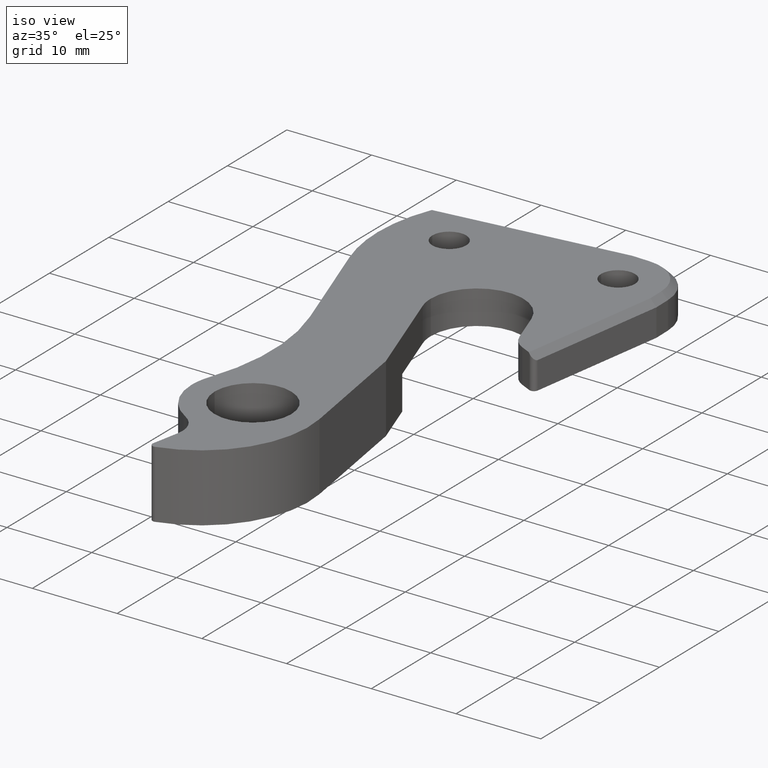
[diagram: clean part render]
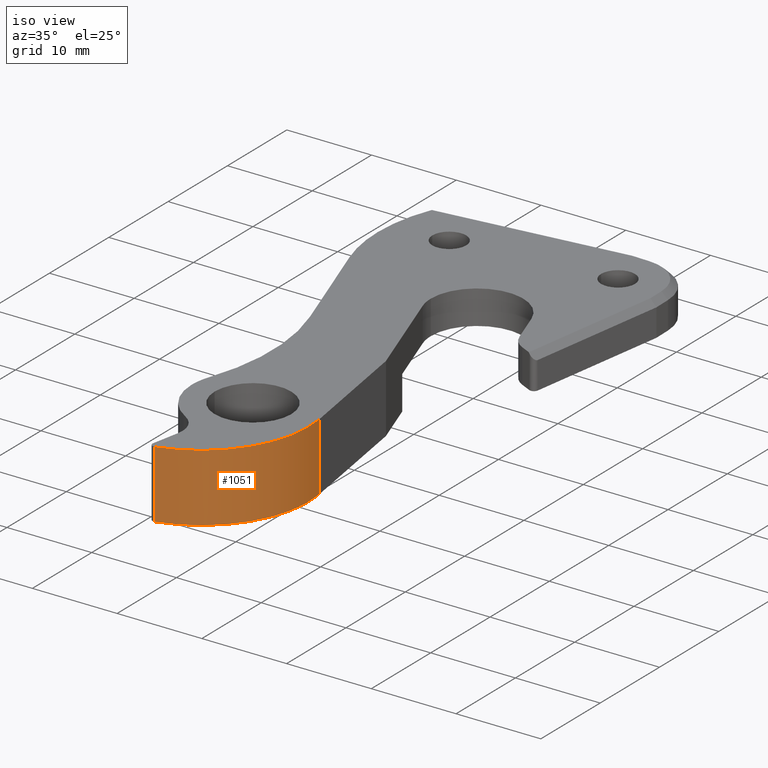
[diagram: same view with one face highlighted and labeled with its STEP entity id]
A machine part, iso view. The second image highlights one B-rep face of the part: STEP entity #1051.
In plain terms, the highlighted cylindrical surface (partial cylindrical patch) has radius 12.7 mm, axis along (0, 0, -1).
Its self-contained STEP definition (entity closure, byte-faithful):
#162 = CYLINDRICAL_SURFACE ( 'NONE', #354, 12.70000000006874963 ) ;
#262 = VERTEX_POINT ( 'NONE', #896 ) ;
#351 = CARTESIAN_POINT ( 'NONE',  ( 51.67574248126681624, -38.27242310695339000, 7.999999999999401368 ) ) ;
#354 = AXIS2_PLACEMENT_3D ( 'NONE', #1008, #899, #1122 ) ;
#385 = CIRCLE ( 'NONE', #1031, 12.70000000006875318 ) ;
#435 = FACE_OUTER_BOUND ( 'NONE', #1097, .T. ) ;
#441 = DIRECTION ( 'NONE',  ( 1.000000000000000000, 0.0000000000000000000, 0.0000000000000000000 ) ) ;
#449 = CARTESIAN_POINT ( 'NONE',  ( 42.29392823100752707, -52.60583728414248839, 7.999999999999401368 ) ) ;
#459 = DIRECTION ( 'NONE',  ( 0.0000000000000000000, 0.0000000000000000000, 1.000000000000000000 ) ) ;
#471 = ORIENTED_EDGE ( 'NONE', *, *, #968, .F. ) ;
#479 = LINE ( 'NONE', #449, #1343 ) ;
#546 = DIRECTION ( 'NONE',  ( 0.0000000000000000000, 0.0000000000000000000, 1.000000000000000000 ) ) ;
#584 = ORIENTED_EDGE ( 'NONE', *, *, #1200, .T. ) ;
#782 = CIRCLE ( 'NONE', #1302, 12.70000000006875318 ) ;
#843 = VERTEX_POINT ( 'NONE', #1090 ) ;
#896 = CARTESIAN_POINT ( 'NONE',  ( 42.29392823100752707, -52.60583728414248839, 7.999999999999401368 ) ) ;
#899 = DIRECTION ( 'NONE',  ( 0.0000000000000000000, 0.0000000000000000000, -1.000000000000000000 ) ) ;
#921 = VECTOR ( 'NONE', #1320, 1000.000000000000000 ) ;
#940 = DIRECTION ( 'NONE',  ( 0.0000000000000000000, 0.0000000000000000000, -1.000000000000000000 ) ) ;
#968 = EDGE_CURVE ( 'NONE', #262, #843, #782, .T. ) ;
#977 = VERTEX_POINT ( 'NONE', #1319 ) ;
#1008 = CARTESIAN_POINT ( 'NONE',  ( 39.13926858105875084, -40.30388124070241673, 7.999999999999401368 ) ) ;
#1031 = AXIS2_PLACEMENT_3D ( 'NONE', #1308, #546, #441 ) ;
#1045 = ORIENTED_EDGE ( 'NONE', *, *, #1216, .T. ) ;
#1051 = ADVANCED_FACE ( 'NONE', ( #435 ), #162, .T. ) ;
#1090 = CARTESIAN_POINT ( 'NONE',  ( 51.67574248126681624, -38.27242310695339000, 7.999999999999401368 ) ) ;
#1097 = EDGE_LOOP ( 'NONE', ( #1045, #1350, #471, #584 ) ) ;
#1104 = CARTESIAN_POINT ( 'NONE',  ( 39.13926858105875084, -40.30388124070241673, 7.999999999999401368 ) ) ;
#1120 = CARTESIAN_POINT ( 'NONE',  ( 51.67574248126681624, -38.27242310695339000, 0.0000000000000000000 ) ) ;
#1122 = DIRECTION ( 'NONE',  ( -1.000000000000000000, 0.0000000000000000000, 0.0000000000000000000 ) ) ;
#1200 = EDGE_CURVE ( 'NONE', #262, #977, #479, .T. ) ;
#1206 = EDGE_CURVE ( 'NONE', #843, #1304, #1208, .T. ) ;
#1208 = LINE ( 'NONE', #351, #921 ) ;
#1213 = DIRECTION ( 'NONE',  ( 1.000000000000000000, 0.0000000000000000000, 0.0000000000000000000 ) ) ;
#1216 = EDGE_CURVE ( 'NONE', #977, #1304, #385, .T. ) ;
#1302 = AXIS2_PLACEMENT_3D ( 'NONE', #1104, #459, #1213 ) ;
#1304 = VERTEX_POINT ( 'NONE', #1120 ) ;
#1308 = CARTESIAN_POINT ( 'NONE',  ( 39.13926858105875084, -40.30388124070241673, 0.0000000000000000000 ) ) ;
#1319 = CARTESIAN_POINT ( 'NONE',  ( 42.29392823100752707, -52.60583728414248839, 0.0000000000000000000 ) ) ;
#1320 = DIRECTION ( 'NONE',  ( 0.0000000000000000000, 0.0000000000000000000, -1.000000000000000000 ) ) ;
#1343 = VECTOR ( 'NONE', #940, 1000.000000000000000 ) ;
#1350 = ORIENTED_EDGE ( 'NONE', *, *, #1206, .F. ) ;